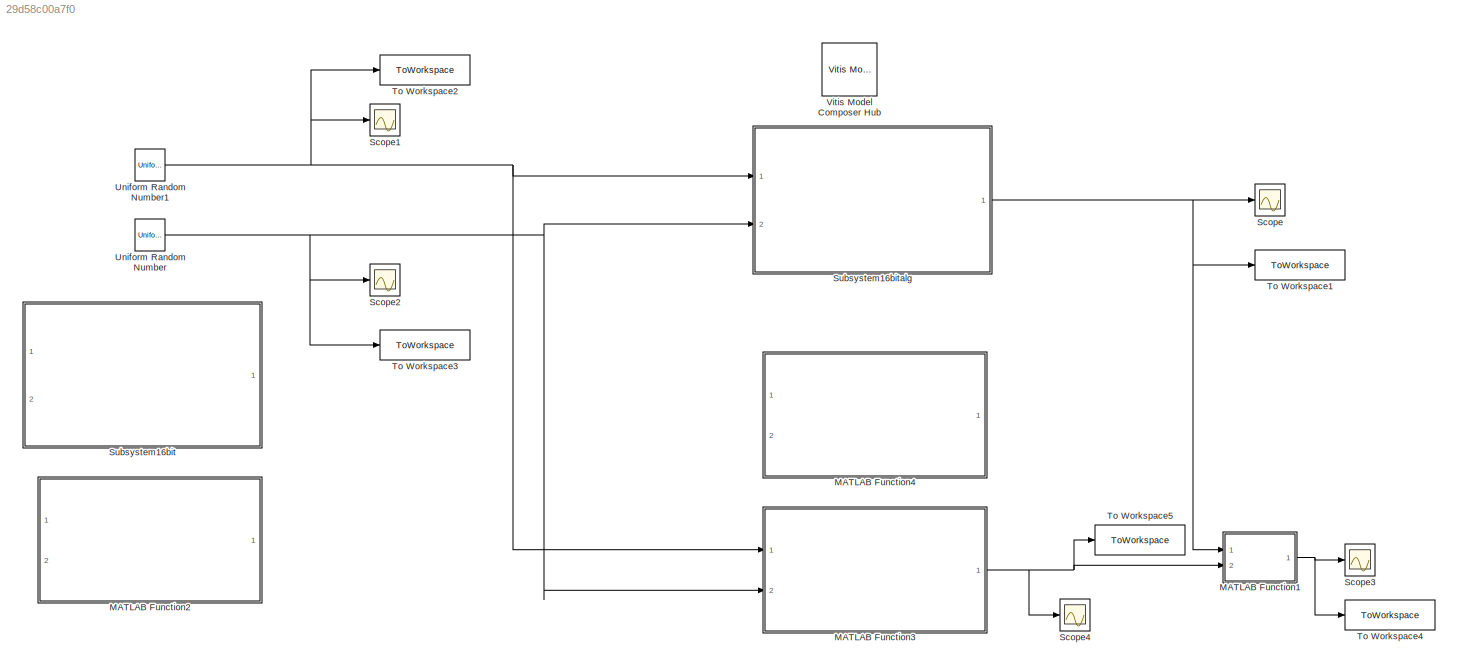
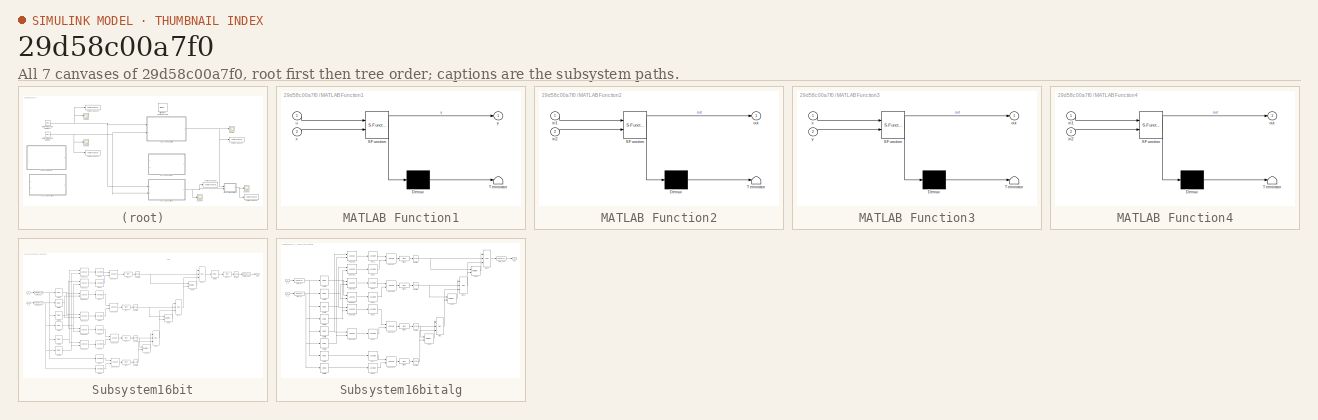
[diagram: thumbnail index - all 7 canvases of the model, root first then tree order]
MODEL slx_29d58c00a7f0
KIND model
CONFIG AbsTol = auto
CONFIG EnableMultiTasking = off
CONFIG FixedStep = auto
CONFIG MaxStep = auto
CONFIG MinStep = auto
CONFIG RelTol = 1e-3
CONFIG SampleTimeConstraint = Unconstrained
CONFIG SolverName = VariableStepAuto
CONFIG StartTime = 0.0
CONFIG StopTime = 99
BLOCK [SubSystem] MATLAB Function1
  ErrorFcn = Stateflow.Translate.translate
  PermitHierarchicalResolution = ExplicitOnly
  Ports = [2, 1]
  RequestExecContextInheritance = off
  SFBlockType = MATLAB Function
  TreatAsAtomicUnit = on
BLOCK [Demux] MATLAB Function1/ Demux 
  Outputs = 1
  Ports = [1, 1]
BLOCK [S-Function] MATLAB Function1/ SFunction 
  EnableBusSupport = on
  FunctionName = sf_sfun
  PortCounts = [2 2]
  Ports = [2, 2]
  SFcnIsStateOwnerBlock = off
  SFunctionDeploymentMode = off
  Tag = Stateflow S-Function 1
BLOCK [Terminator] MATLAB Function1/ Terminator 
BLOCK [Inport] MATLAB Function1/u
BLOCK [Inport] MATLAB Function1/x
  Port = 2
BLOCK [Outport] MATLAB Function1/y
BLOCK [SubSystem] MATLAB Function2
  Commented = on
  ErrorFcn = Stateflow.Translate.translate
  PermitHierarchicalResolution = ExplicitOnly
  Ports = [2, 1]
  RequestExecContextInheritance = off
  SFBlockType = MATLAB Function
  TreatAsAtomicUnit = on
BLOCK [Demux] MATLAB Function2/ Demux 
  Outputs = 1
  Ports = [1, 1]
BLOCK [S-Function] MATLAB Function2/ SFunction 
  EnableBusSupport = on
  FunctionName = sf_sfun
  PortCounts = [2 2]
  Ports = [2, 2]
  SFcnIsStateOwnerBlock = off
  SFunctionDeploymentMode = off
  Tag = Stateflow S-Function 2
BLOCK [Terminator] MATLAB Function2/ Terminator 
BLOCK [Inport] MATLAB Function2/in1
BLOCK [Inport] MATLAB Function2/in2
  Port = 2
BLOCK [Outport] MATLAB Function2/out
BLOCK [SubSystem] MATLAB Function3
  ErrorFcn = Stateflow.Translate.translate
  PermitHierarchicalResolution = ExplicitOnly
  Ports = [2, 1]
  RequestExecContextInheritance = off
  SFBlockType = MATLAB Function
  TreatAsAtomicUnit = on
BLOCK [Demux] MATLAB Function3/ Demux 
  Outputs = 1
  Ports = [1, 1]
BLOCK [S-Function] MATLAB Function3/ SFunction 
  EnableBusSupport = on
  FunctionName = sf_sfun
  PortCounts = [2 2]
  Ports = [2, 2]
  SFcnIsStateOwnerBlock = off
  SFunctionDeploymentMode = off
  Tag = Stateflow S-Function 4
BLOCK [Terminator] MATLAB Function3/ Terminator 
BLOCK [Outport] MATLAB Function3/out
BLOCK [Inport] MATLAB Function3/x
BLOCK [Inport] MATLAB Function3/y
  Port = 2
BLOCK [SubSystem] MATLAB Function4
  Commented = on
  ErrorFcn = Stateflow.Translate.translate
  PermitHierarchicalResolution = ExplicitOnly
  Ports = [2, 1]
  RequestExecContextInheritance = off
  SFBlockType = MATLAB Function
  TreatAsAtomicUnit = on
BLOCK [Demux] MATLAB Function4/ Demux 
  Outputs = 1
  Ports = [1, 1]
BLOCK [S-Function] MATLAB Function4/ SFunction 
  EnableBusSupport = on
  FunctionName = sf_sfun
  PortCounts = [2 2]
  Ports = [2, 2]
  SFcnIsStateOwnerBlock = off
  SFunctionDeploymentMode = off
  Tag = Stateflow S-Function 10
BLOCK [Terminator] MATLAB Function4/ Terminator 
BLOCK [Inport] MATLAB Function4/in1
BLOCK [Inport] MATLAB Function4/in2
  Port = 2
BLOCK [Outport] MATLAB Function4/out
BLOCK [Scope] Scope
  Floating = off
  NumInputPorts = 1
  Ports = [1]
  ScopeSpecificationString = Simulink.scopes.TimeScopeBlockCfg('CurrentConfiguration', extmgr.ConfigurationSet(extmgr.Configuration('Core','General UI',true),extmgr.Configuration('Core','Source UI',true),extmgr.Configuration('Sources','WiredSimulink',true,'DataLoggingVariableName','ScopeData1'),extmgr.Configuration('Visuals','Time Domain',true,'SerializedDisplays',{struct('MinYLimReal','-0.15463','MaxYLimReal','1.39164','YLab...<+1467ch>
BLOCK [Scope] Scope1
  Floating = off
  NumInputPorts = 1
  Ports = [1]
  ScopeSpecificationString = Simulink.scopes.TimeScopeBlockCfg('CurrentConfiguration', extmgr.ConfigurationSet(extmgr.Configuration('Core','General UI',true),extmgr.Configuration('Core','Source UI',true),extmgr.Configuration('Sources','WiredSimulink',true,'DataLoggingVariableName','ScopeData2'),extmgr.Configuration('Visuals','Time Domain',true,'SerializedDisplays',{struct('MinYLimReal','-1.24022','MaxYLimReal','1.19726','YLab...<+1453ch>
BLOCK [Scope] Scope2
  Floating = off
  NumInputPorts = 1
  Ports = [1]
  ScopeSpecificationString = Simulink.scopes.TimeScopeBlockCfg('CurrentConfiguration', extmgr.ConfigurationSet(extmgr.Configuration('Core','General UI',true),extmgr.Configuration('Core','Source UI',true),extmgr.Configuration('Sources','WiredSimulink',true,'DataLoggingVariableName','ScopeData3'),extmgr.Configuration('Visuals','Time Domain',true,'SerializedDisplays',{struct('MinYLimReal','-0.11627','MaxYLimReal','1.12343','YLab...<+1450ch>
BLOCK [Scope] Scope3
  Floating = off
  NumInputPorts = 1
  Ports = [1]
  ScopeSpecificationString = Simulink.scopes.TimeScopeBlockCfg('CurrentConfiguration', extmgr.ConfigurationSet(extmgr.Configuration('Core','General UI',true),extmgr.Configuration('Core','Source UI',true),extmgr.Configuration('Sources','WiredSimulink',true,'DataLoggingVariableName','ScopeData4'),extmgr.Configuration('Visuals','Time Domain',true,'SerializedDisplays',{struct('MinYLimReal','-0.00007','MaxYLimReal','0.00059','YLab...<+1448ch>
BLOCK [Scope] Scope4
  Floating = off
  NumInputPorts = 1
  Ports = [1]
  ScopeSpecificationString = Simulink.scopes.TimeScopeBlockCfg('CurrentConfiguration', extmgr.ConfigurationSet(extmgr.Configuration('Core','General UI',true),extmgr.Configuration('Core','Source UI',true),extmgr.Configuration('Sources','WiredSimulink',true),extmgr.Configuration('Visuals','Time Domain',true,'SerializedDisplays',{struct('MinYLimReal','-0.15485','MaxYLimReal','1.39364','YLabelReal','','MinYLimMag','0.00000','MaxY...<+1409ch>
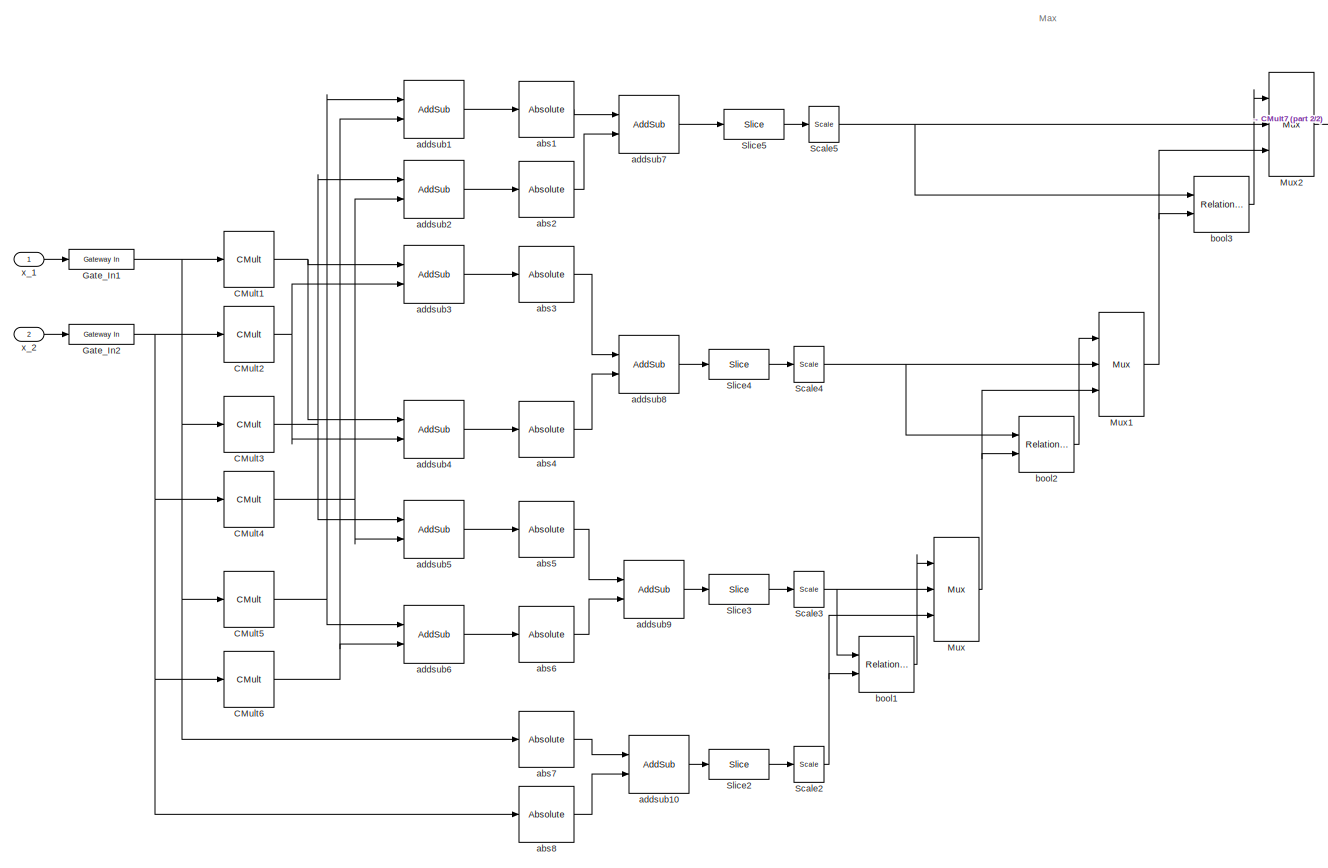
[diagram: Subsystem16bit - part 1/2, most of the canvas]
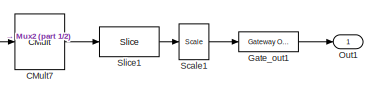
[diagram: Subsystem16bit - part 2/2, top right region]
BLOCK [SubSystem] Subsystem16bit
  Commented = on
  Ports = [2, 1]
  RequestExecContextInheritance = off
BLOCK [Reference] Subsystem16bit/CMult1  REF=hdlBasic/CMult
  Ports = [1, 1]
  SourceBlock = hdlBasic/CMult
  SourceType = Constant Multiplier Block
BLOCK [Reference] Subsystem16bit/CMult2  REF=hdlBasic/CMult
  Ports = [1, 1]
  SourceBlock = hdlBasic/CMult
  SourceType = Constant Multiplier Block
BLOCK [Reference] Subsystem16bit/CMult3  REF=hdlBasic/CMult
  Ports = [1, 1]
  SourceBlock = hdlBasic/CMult
  SourceType = Constant Multiplier Block
BLOCK [Reference] Subsystem16bit/CMult4  REF=hdlBasic/CMult
  Ports = [1, 1]
  SourceBlock = hdlBasic/CMult
  SourceType = Constant Multiplier Block
BLOCK [Reference] Subsystem16bit/CMult5  REF=hdlBasic/CMult
  Ports = [1, 1]
  SourceBlock = hdlBasic/CMult
  SourceType = Constant Multiplier Block
BLOCK [Reference] Subsystem16bit/CMult6  REF=hdlBasic/CMult
  Ports = [1, 1]
  SourceBlock = hdlBasic/CMult
  SourceType = Constant Multiplier Block
BLOCK [Reference] Subsystem16bit/CMult7  REF=hdlBasic/CMult
  Ports = [1, 1]
  SourceBlock = hdlBasic/CMult
  SourceType = Constant Multiplier Block
BLOCK [Reference] Subsystem16bit/Gate_In1  REF=hdlBasic/Gateway In
  Ports = [1, 1]
  SourceBlock = hdlBasic/Gateway In
  SourceType = Gateway In Block
BLOCK [Reference] Subsystem16bit/Gate_In2  REF=hdlBasic/Gateway In
  Ports = [1, 1]
  SourceBlock = hdlBasic/Gateway In
  SourceType = Gateway In Block
BLOCK [Reference] Subsystem16bit/Gate_out1  REF=hdlBasic/Gateway Out
  Ports = [1, 1]
  SourceBlock = hdlBasic/Gateway Out
  SourceType = Gateway Out Block
BLOCK [Reference] Subsystem16bit/Mux  REF=hdlBasic/Mux
  Ports = [3, 1]
  SourceBlock = hdlBasic/Mux
  SourceType = Bus Multiplexer Block
BLOCK [Reference] Subsystem16bit/Mux1  REF=hdlBasic/Mux
  Ports = [3, 1]
  SourceBlock = hdlBasic/Mux
  SourceType = Bus Multiplexer Block
BLOCK [Reference] Subsystem16bit/Mux2  REF=hdlBasic/Mux
  Ports = [3, 1]
  SourceBlock = hdlBasic/Mux
  SourceType = Bus Multiplexer Block
BLOCK [Outport] Subsystem16bit/Out1
BLOCK [Reference] Subsystem16bit/Scale1  REF=hdlBasic/Scale
  Ports = [1, 1]
  SourceBlock = hdlBasic/Scale
  SourceType = Input Scaler Block
BLOCK [Reference] Subsystem16bit/Scale2  REF=hdlBasic/Scale
  Ports = [1, 1]
  SourceBlock = hdlBasic/Scale
  SourceType = Input Scaler Block
BLOCK [Reference] Subsystem16bit/Scale3  REF=hdlBasic/Scale
  Ports = [1, 1]
  SourceBlock = hdlBasic/Scale
  SourceType = Input Scaler Block
BLOCK [Reference] Subsystem16bit/Scale4  REF=hdlBasic/Scale
  Ports = [1, 1]
  SourceBlock = hdlBasic/Scale
  SourceType = Input Scaler Block
BLOCK [Reference] Subsystem16bit/Scale5  REF=hdlBasic/Scale
  Ports = [1, 1]
  SourceBlock = hdlBasic/Scale
  SourceType = Input Scaler Block
BLOCK [Reference] Subsystem16bit/Slice1  REF=hdlBasic/Slice
  Ports = [1, 1]
  SourceBlock = hdlBasic/Slice
  SourceType = Bit Slice Extractor Block
BLOCK [Reference] Subsystem16bit/Slice2  REF=hdlBasic/Slice
  Ports = [1, 1]
  SourceBlock = hdlBasic/Slice
  SourceType = Bit Slice Extractor Block
BLOCK [Reference] Subsystem16bit/Slice3  REF=hdlBasic/Slice
  Ports = [1, 1]
  SourceBlock = hdlBasic/Slice
  SourceType = Bit Slice Extractor Block
BLOCK [Reference] Subsystem16bit/Slice4  REF=hdlBasic/Slice
  Ports = [1, 1]
  SourceBlock = hdlBasic/Slice
  SourceType = Bit Slice Extractor Block
BLOCK [Reference] Subsystem16bit/Slice5  REF=hdlBasic/Slice
  Ports = [1, 1]
  SourceBlock = hdlBasic/Slice
  SourceType = Bit Slice Extractor Block
BLOCK [Reference] Subsystem16bit/abs1  REF=hdlBasic/Absolute
  Ports = [1, 1]
  SourceBlock = hdlBasic/Absolute
  SourceType = Absolute Block
BLOCK [Reference] Subsystem16bit/abs2  REF=hdlBasic/Absolute
  Ports = [1, 1]
  SourceBlock = hdlBasic/Absolute
  SourceType = Absolute Block
BLOCK [Reference] Subsystem16bit/abs3  REF=hdlBasic/Absolute
  Ports = [1, 1]
  SourceBlock = hdlBasic/Absolute
  SourceType = Absolute Block
BLOCK [Reference] Subsystem16bit/abs4  REF=hdlBasic/Absolute
  Ports = [1, 1]
  SourceBlock = hdlBasic/Absolute
  SourceType = Absolute Block
BLOCK [Reference] Subsystem16bit/abs5  REF=hdlBasic/Absolute
  Ports = [1, 1]
  SourceBlock = hdlBasic/Absolute
  SourceType = Absolute Block
BLOCK [Reference] Subsystem16bit/abs6  REF=hdlBasic/Absolute
  Ports = [1, 1]
  SourceBlock = hdlBasic/Absolute
  SourceType = Absolute Block
BLOCK [Reference] Subsystem16bit/abs7  REF=hdlBasic/Absolute
  Ports = [1, 1]
  SourceBlock = hdlBasic/Absolute
  SourceType = Absolute Block
BLOCK [Reference] Subsystem16bit/abs8  REF=hdlBasic/Absolute
  Ports = [1, 1]
  SourceBlock = hdlBasic/Absolute
  SourceType = Absolute Block
BLOCK [Reference] Subsystem16bit/addsub1  REF=hdlBasic/AddSub
  Ports = [2, 1]
  SourceBlock = hdlBasic/AddSub
  SourceType = Adder/Subtracter Block
BLOCK [Reference] Subsystem16bit/addsub10  REF=hdlBasic/AddSub
  Ports = [2, 1]
  SourceBlock = hdlBasic/AddSub
  SourceType = Adder/Subtracter Block
BLOCK [Reference] Subsystem16bit/addsub2  REF=hdlBasic/AddSub
  Ports = [2, 1]
  SourceBlock = hdlBasic/AddSub
  SourceType = Adder/Subtracter Block
BLOCK [Reference] Subsystem16bit/addsub3  REF=hdlBasic/AddSub
  Ports = [2, 1]
  SourceBlock = hdlBasic/AddSub
  SourceType = Adder/Subtracter Block
BLOCK [Reference] Subsystem16bit/addsub4  REF=hdlBasic/AddSub
  Ports = [2, 1]
  SourceBlock = hdlBasic/AddSub
  SourceType = Adder/Subtracter Block
BLOCK [Reference] Subsystem16bit/addsub5  REF=hdlBasic/AddSub
  Ports = [2, 1]
  SourceBlock = hdlBasic/AddSub
  SourceType = Adder/Subtracter Block
BLOCK [Reference] Subsystem16bit/addsub6  REF=hdlBasic/AddSub
  Ports = [2, 1]
  SourceBlock = hdlBasic/AddSub
  SourceType = Adder/Subtracter Block
BLOCK [Reference] Subsystem16bit/addsub7  REF=hdlBasic/AddSub
  Ports = [2, 1]
  SourceBlock = hdlBasic/AddSub
  SourceType = Adder/Subtracter Block
BLOCK [Reference] Subsystem16bit/addsub8  REF=hdlBasic/AddSub
  Ports = [2, 1]
  SourceBlock = hdlBasic/AddSub
  SourceType = Adder/Subtracter Block
BLOCK [Reference] Subsystem16bit/addsub9  REF=hdlBasic/AddSub
  Ports = [2, 1]
  SourceBlock = hdlBasic/AddSub
  SourceType = Adder/Subtracter Block
BLOCK [Reference] Subsystem16bit/bool1  REF=hdlBasic/Relational
  Ports = [2, 1]
  SourceBlock = hdlBasic/Relational
  SourceType = Arithmetic Relational Operator Block
BLOCK [Reference] Subsystem16bit/bool2  REF=hdlBasic/Relational
  Ports = [2, 1]
  SourceBlock = hdlBasic/Relational
  SourceType = Arithmetic Relational Operator Block
BLOCK [Reference] Subsystem16bit/bool3  REF=hdlBasic/Relational
  Ports = [2, 1]
  SourceBlock = hdlBasic/Relational
  SourceType = Arithmetic Relational Operator Block
BLOCK [Inport] Subsystem16bit/x_1
BLOCK [Inport] Subsystem16bit/x_2
  Port = 2
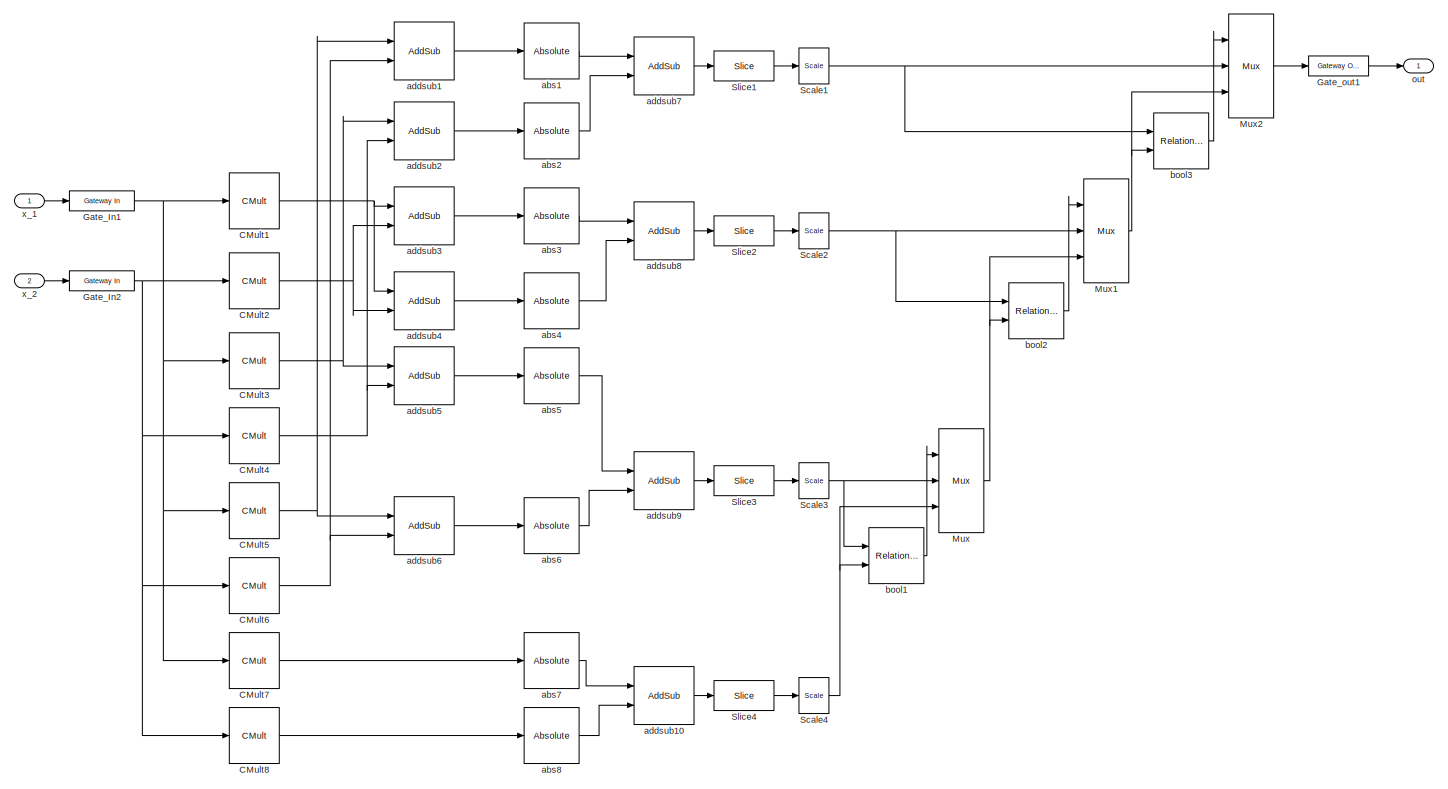
[diagram: Subsystem16bitalg - part 1/1, most of the canvas]
BLOCK [SubSystem] Subsystem16bitalg
  Ports = [2, 1]
  RequestExecContextInheritance = off
BLOCK [Reference] Subsystem16bitalg/CMult1  REF=hdlBasic/CMult
  Ports = [1, 1]
  SourceBlock = hdlBasic/CMult
  SourceType = Constant Multiplier Block
BLOCK [Reference] Subsystem16bitalg/CMult2  REF=hdlBasic/CMult
  Ports = [1, 1]
  SourceBlock = hdlBasic/CMult
  SourceType = Constant Multiplier Block
BLOCK [Reference] Subsystem16bitalg/CMult3  REF=hdlBasic/CMult
  Ports = [1, 1]
  SourceBlock = hdlBasic/CMult
  SourceType = Constant Multiplier Block
BLOCK [Reference] Subsystem16bitalg/CMult4  REF=hdlBasic/CMult
  Ports = [1, 1]
  SourceBlock = hdlBasic/CMult
  SourceType = Constant Multiplier Block
BLOCK [Reference] Subsystem16bitalg/CMult5  REF=hdlBasic/CMult
  Ports = [1, 1]
  SourceBlock = hdlBasic/CMult
  SourceType = Constant Multiplier Block
BLOCK [Reference] Subsystem16bitalg/CMult6  REF=hdlBasic/CMult
  Ports = [1, 1]
  SourceBlock = hdlBasic/CMult
  SourceType = Constant Multiplier Block
BLOCK [Reference] Subsystem16bitalg/CMult7  REF=hdlBasic/CMult
  Ports = [1, 1]
  SourceBlock = hdlBasic/CMult
  SourceType = Constant Multiplier Block
BLOCK [Reference] Subsystem16bitalg/CMult8  REF=hdlBasic/CMult
  Ports = [1, 1]
  SourceBlock = hdlBasic/CMult
  SourceType = Constant Multiplier Block
BLOCK [Reference] Subsystem16bitalg/Gate_In1  REF=hdlBasic/Gateway In
  Ports = [1, 1]
  SourceBlock = hdlBasic/Gateway In
  SourceType = Gateway In Block
BLOCK [Reference] Subsystem16bitalg/Gate_In2  REF=hdlBasic/Gateway In
  Ports = [1, 1]
  SourceBlock = hdlBasic/Gateway In
  SourceType = Gateway In Block
BLOCK [Reference] Subsystem16bitalg/Gate_out1  REF=hdlBasic/Gateway Out
  Ports = [1, 1]
  SourceBlock = hdlBasic/Gateway Out
  SourceType = Gateway Out Block
BLOCK [Reference] Subsystem16bitalg/Mux  REF=hdlBasic/Mux
  Ports = [3, 1]
  SourceBlock = hdlBasic/Mux
  SourceType = Bus Multiplexer Block
BLOCK [Reference] Subsystem16bitalg/Mux1  REF=hdlBasic/Mux
  Ports = [3, 1]
  SourceBlock = hdlBasic/Mux
  SourceType = Bus Multiplexer Block
BLOCK [Reference] Subsystem16bitalg/Mux2  REF=hdlBasic/Mux
  Ports = [3, 1]
  SourceBlock = hdlBasic/Mux
  SourceType = Bus Multiplexer Block
BLOCK [Reference] Subsystem16bitalg/Scale1  REF=hdlBasic/Scale
  Ports = [1, 1]
  SourceBlock = hdlBasic/Scale
  SourceType = Input Scaler Block
BLOCK [Reference] Subsystem16bitalg/Scale2  REF=hdlBasic/Scale
  Ports = [1, 1]
  SourceBlock = hdlBasic/Scale
  SourceType = Input Scaler Block
BLOCK [Reference] Subsystem16bitalg/Scale3  REF=hdlBasic/Scale
  Ports = [1, 1]
  SourceBlock = hdlBasic/Scale
  SourceType = Input Scaler Block
BLOCK [Reference] Subsystem16bitalg/Scale4  REF=hdlBasic/Scale
  Ports = [1, 1]
  SourceBlock = hdlBasic/Scale
  SourceType = Input Scaler Block
BLOCK [Reference] Subsystem16bitalg/Slice1  REF=hdlBasic/Slice
  Ports = [1, 1]
  SourceBlock = hdlBasic/Slice
  SourceType = Bit Slice Extractor Block
BLOCK [Reference] Subsystem16bitalg/Slice2  REF=hdlBasic/Slice
  Ports = [1, 1]
  SourceBlock = hdlBasic/Slice
  SourceType = Bit Slice Extractor Block
BLOCK [Reference] Subsystem16bitalg/Slice3  REF=hdlBasic/Slice
  Ports = [1, 1]
  SourceBlock = hdlBasic/Slice
  SourceType = Bit Slice Extractor Block
BLOCK [Reference] Subsystem16bitalg/Slice4  REF=hdlBasic/Slice
  Ports = [1, 1]
  SourceBlock = hdlBasic/Slice
  SourceType = Bit Slice Extractor Block
BLOCK [Reference] Subsystem16bitalg/abs1  REF=hdlBasic/Absolute
  Ports = [1, 1]
  SourceBlock = hdlBasic/Absolute
  SourceType = Absolute Block
BLOCK [Reference] Subsystem16bitalg/abs2  REF=hdlBasic/Absolute
  Ports = [1, 1]
  SourceBlock = hdlBasic/Absolute
  SourceType = Absolute Block
BLOCK [Reference] Subsystem16bitalg/abs3  REF=hdlBasic/Absolute
  Ports = [1, 1]
  SourceBlock = hdlBasic/Absolute
  SourceType = Absolute Block
BLOCK [Reference] Subsystem16bitalg/abs4  REF=hdlBasic/Absolute
  Ports = [1, 1]
  SourceBlock = hdlBasic/Absolute
  SourceType = Absolute Block
BLOCK [Reference] Subsystem16bitalg/abs5  REF=hdlBasic/Absolute
  Ports = [1, 1]
  SourceBlock = hdlBasic/Absolute
  SourceType = Absolute Block
BLOCK [Reference] Subsystem16bitalg/abs6  REF=hdlBasic/Absolute
  Ports = [1, 1]
  SourceBlock = hdlBasic/Absolute
  SourceType = Absolute Block
BLOCK [Reference] Subsystem16bitalg/abs7  REF=hdlBasic/Absolute
  Ports = [1, 1]
  SourceBlock = hdlBasic/Absolute
  SourceType = Absolute Block
BLOCK [Reference] Subsystem16bitalg/abs8  REF=hdlBasic/Absolute
  Ports = [1, 1]
  SourceBlock = hdlBasic/Absolute
  SourceType = Absolute Block
BLOCK [Reference] Subsystem16bitalg/addsub1  REF=hdlBasic/AddSub
  Ports = [2, 1]
  SourceBlock = hdlBasic/AddSub
  SourceType = Adder/Subtracter Block
BLOCK [Reference] Subsystem16bitalg/addsub10  REF=hdlBasic/AddSub
  Ports = [2, 1]
  SourceBlock = hdlBasic/AddSub
  SourceType = Adder/Subtracter Block
BLOCK [Reference] Subsystem16bitalg/addsub2  REF=hdlBasic/AddSub
  Ports = [2, 1]
  SourceBlock = hdlBasic/AddSub
  SourceType = Adder/Subtracter Block
BLOCK [Reference] Subsystem16bitalg/addsub3  REF=hdlBasic/AddSub
  Ports = [2, 1]
  SourceBlock = hdlBasic/AddSub
  SourceType = Adder/Subtracter Block
BLOCK [Reference] Subsystem16bitalg/addsub4  REF=hdlBasic/AddSub
  Ports = [2, 1]
  SourceBlock = hdlBasic/AddSub
  SourceType = Adder/Subtracter Block
BLOCK [Reference] Subsystem16bitalg/addsub5  REF=hdlBasic/AddSub
  Ports = [2, 1]
  SourceBlock = hdlBasic/AddSub
  SourceType = Adder/Subtracter Block
BLOCK [Reference] Subsystem16bitalg/addsub6  REF=hdlBasic/AddSub
  Ports = [2, 1]
  SourceBlock = hdlBasic/AddSub
  SourceType = Adder/Subtracter Block
BLOCK [Reference] Subsystem16bitalg/addsub7  REF=hdlBasic/AddSub
  Ports = [2, 1]
  SourceBlock = hdlBasic/AddSub
  SourceType = Adder/Subtracter Block
BLOCK [Reference] Subsystem16bitalg/addsub8  REF=hdlBasic/AddSub
  Ports = [2, 1]
  SourceBlock = hdlBasic/AddSub
  SourceType = Adder/Subtracter Block
BLOCK [Reference] Subsystem16bitalg/addsub9  REF=hdlBasic/AddSub
  Ports = [2, 1]
  SourceBlock = hdlBasic/AddSub
  SourceType = Adder/Subtracter Block
BLOCK [Reference] Subsystem16bitalg/bool1  REF=hdlBasic/Relational
  Ports = [2, 1]
  SourceBlock = hdlBasic/Relational
  SourceType = Arithmetic Relational Operator Block
BLOCK [Reference] Subsystem16bitalg/bool2  REF=hdlBasic/Relational
  Ports = [2, 1]
  SourceBlock = hdlBasic/Relational
  SourceType = Arithmetic Relational Operator Block
BLOCK [Reference] Subsystem16bitalg/bool3  REF=hdlBasic/Relational
  Ports = [2, 1]
  SourceBlock = hdlBasic/Relational
  SourceType = Arithmetic Relational Operator Block
BLOCK [Outport] Subsystem16bitalg/out
BLOCK [Inport] Subsystem16bitalg/x_1
BLOCK [Inport] Subsystem16bitalg/x_2
  Port = 2
BLOCK [ToWorkspace] To Workspace1
  FixptAsFi = on
  MaxDataPoints = inf
  Ports = [1]
  SampleTime = -1
  SaveFormat = Structure With Time
  VariableName = outPro
BLOCK [ToWorkspace] To Workspace2
  FixptAsFi = on
  MaxDataPoints = inf
  Ports = [1]
  SampleTime = -1
  SaveFormat = Structure With Time
  VariableName = IN1
BLOCK [ToWorkspace] To Workspace3
  FixptAsFi = on
  MaxDataPoints = inf
  Ports = [1]
  SampleTime = -1
  SaveFormat = Structure With Time
  VariableName = IN2
BLOCK [ToWorkspace] To Workspace4
  FixptAsFi = on
  MaxDataPoints = inf
  Ports = [1]
  SampleTime = -1
  SaveFormat = Structure With Time
  VariableName = mse
BLOCK [ToWorkspace] To Workspace5
  FixptAsFi = on
  MaxDataPoints = inf
  Ports = [1]
  SampleTime = -1
  SaveFormat = Structure With Time
  VariableName = outGOLD
BLOCK [UniformRandomNumber] Uniform Random Number
  SampleTime = 1
BLOCK [UniformRandomNumber] Uniform Random Number1
  SampleTime = 1
  Seed = 1
BLOCK [Reference] Vitis Model Composer Hub  REF=vmcUtilities/Vitis Model Composer Hub
  Ports = []
  SourceBlock = vmcUtilities/Vitis Model Composer Hub
  SourceType = Implementation
  Tag = genX
  UserDataPersistent = on
ANNOTATION Subsystem16bit: Max
NET MATLAB Function1:1 -> Scope3:1, To Workspace4:1
NET MATLAB Function3:1 -> MATLAB Function1:2, Scope4:1, To Workspace5:1
NET Subsystem16bit/CMult1:1 -> Subsystem16bit/addsub3:1, Subsystem16bit/addsub4:1
NET Subsystem16bit/CMult2:1 -> Subsystem16bit/addsub3:2, Subsystem16bit/addsub4:2
NET Subsystem16bit/CMult3:1 -> Subsystem16bit/addsub2:1, Subsystem16bit/addsub5:1
NET Subsystem16bit/CMult4:1 -> Subsystem16bit/addsub2:2, Subsystem16bit/addsub5:2
NET Subsystem16bit/CMult5:1 -> Subsystem16bit/addsub1:1, Subsystem16bit/addsub6:1
NET Subsystem16bit/CMult6:1 -> Subsystem16bit/addsub1:2, Subsystem16bit/addsub6:2
LINE Subsystem16bit/CMult7:1 -> Subsystem16bit/Slice1:1
NET Subsystem16bit/Gate_In1:1 -> Subsystem16bit/CMult1:1, Subsystem16bit/CMult3:1, Subsystem16bit/CMult5:1, Subsystem16bit/abs7:1
NET Subsystem16bit/Gate_In2:1 -> Subsystem16bit/CMult2:1, Subsystem16bit/CMult4:1, Subsystem16bit/CMult6:1, Subsystem16bit/abs8:1
LINE Subsystem16bit/Gate_out1:1 -> Subsystem16bit/Out1:1
NET Subsystem16bit/Mux1:1 -> Subsystem16bit/Mux2:3, Subsystem16bit/bool3:2
LINE Subsystem16bit/Mux2:1 -> Subsystem16bit/CMult7:1
NET Subsystem16bit/Mux:1 -> Subsystem16bit/Mux1:3, Subsystem16bit/bool2:2
LINE Subsystem16bit/Scale1:1 -> Subsystem16bit/Gate_out1:1
NET Subsystem16bit/Scale2:1 -> Subsystem16bit/Mux:3, Subsystem16bit/bool1:2
NET Subsystem16bit/Scale3:1 -> Subsystem16bit/Mux:2, Subsystem16bit/bool1:1
NET Subsystem16bit/Scale4:1 -> Subsystem16bit/Mux1:2, Subsystem16bit/bool2:1
NET Subsystem16bit/Scale5:1 -> Subsystem16bit/Mux2:2, Subsystem16bit/bool3:1
LINE Subsystem16bit/Slice1:1 -> Subsystem16bit/Scale1:1
LINE Subsystem16bit/Slice2:1 -> Subsystem16bit/Scale2:1
LINE Subsystem16bit/Slice3:1 -> Subsystem16bit/Scale3:1
LINE Subsystem16bit/Slice4:1 -> Subsystem16bit/Scale4:1
LINE Subsystem16bit/Slice5:1 -> Subsystem16bit/Scale5:1
LINE Subsystem16bit/abs1:1 -> Subsystem16bit/addsub7:1
LINE Subsystem16bit/abs2:1 -> Subsystem16bit/addsub7:2
LINE Subsystem16bit/abs3:1 -> Subsystem16bit/addsub8:1
LINE Subsystem16bit/abs4:1 -> Subsystem16bit/addsub8:2
LINE Subsystem16bit/abs5:1 -> Subsystem16bit/addsub9:1
LINE Subsystem16bit/abs6:1 -> Subsystem16bit/addsub9:2
LINE Subsystem16bit/abs7:1 -> Subsystem16bit/addsub10:1
LINE Subsystem16bit/abs8:1 -> Subsystem16bit/addsub10:2
LINE Subsystem16bit/addsub10:1 -> Subsystem16bit/Slice2:1
LINE Subsystem16bit/addsub1:1 -> Subsystem16bit/abs1:1
LINE Subsystem16bit/addsub2:1 -> Subsystem16bit/abs2:1
LINE Subsystem16bit/addsub3:1 -> Subsystem16bit/abs3:1
LINE Subsystem16bit/addsub4:1 -> Subsystem16bit/abs4:1
LINE Subsystem16bit/addsub5:1 -> Subsystem16bit/abs5:1
LINE Subsystem16bit/addsub6:1 -> Subsystem16bit/abs6:1
LINE Subsystem16bit/addsub7:1 -> Subsystem16bit/Slice5:1
LINE Subsystem16bit/addsub8:1 -> Subsystem16bit/Slice4:1
LINE Subsystem16bit/addsub9:1 -> Subsystem16bit/Slice3:1
LINE Subsystem16bit/bool1:1 -> Subsystem16bit/Mux:1
LINE Subsystem16bit/bool2:1 -> Subsystem16bit/Mux1:1
LINE Subsystem16bit/bool3:1 -> Subsystem16bit/Mux2:1
LINE Subsystem16bit/x_1:1 -> Subsystem16bit/Gate_In1:1
LINE Subsystem16bit/x_2:1 -> Subsystem16bit/Gate_In2:1
NET Subsystem16bitalg/CMult1:1 -> Subsystem16bitalg/addsub3:1, Subsystem16bitalg/addsub4:1
NET Subsystem16bitalg/CMult2:1 -> Subsystem16bitalg/addsub3:2, Subsystem16bitalg/addsub4:2
NET Subsystem16bitalg/CMult3:1 -> Subsystem16bitalg/addsub2:1, Subsystem16bitalg/addsub5:1
NET Subsystem16bitalg/CMult4:1 -> Subsystem16bitalg/addsub2:2, Subsystem16bitalg/addsub5:2
NET Subsystem16bitalg/CMult5:1 -> Subsystem16bitalg/addsub1:1, Subsystem16bitalg/addsub6:1
NET Subsystem16bitalg/CMult6:1 -> Subsystem16bitalg/addsub1:2, Subsystem16bitalg/addsub6:2
LINE Subsystem16bitalg/CMult7:1 -> Subsystem16bitalg/abs7:1
LINE Subsystem16bitalg/CMult8:1 -> Subsystem16bitalg/abs8:1
NET Subsystem16bitalg/Gate_In1:1 -> Subsystem16bitalg/CMult1:1, Subsystem16bitalg/CMult3:1, Subsystem16bitalg/CMult5:1, Subsystem16bitalg/CMult7:1
NET Subsystem16bitalg/Gate_In2:1 -> Subsystem16bitalg/CMult2:1, Subsystem16bitalg/CMult4:1, Subsystem16bitalg/CMult6:1, Subsystem16bitalg/CMult8:1
LINE Subsystem16bitalg/Gate_out1:1 -> Subsystem16bitalg/out:1
NET Subsystem16bitalg/Mux1:1 -> Subsystem16bitalg/Mux2:3, Subsystem16bitalg/bool3:2
LINE Subsystem16bitalg/Mux2:1 -> Subsystem16bitalg/Gate_out1:1
NET Subsystem16bitalg/Mux:1 -> Subsystem16bitalg/Mux1:3, Subsystem16bitalg/bool2:2
NET Subsystem16bitalg/Scale1:1 -> Subsystem16bitalg/Mux2:2, Subsystem16bitalg/bool3:1
NET Subsystem16bitalg/Scale2:1 -> Subsystem16bitalg/Mux1:2, Subsystem16bitalg/bool2:1
NET Subsystem16bitalg/Scale3:1 -> Subsystem16bitalg/Mux:2, Subsystem16bitalg/bool1:1
NET Subsystem16bitalg/Scale4:1 -> Subsystem16bitalg/Mux:3, Subsystem16bitalg/bool1:2
LINE Subsystem16bitalg/Slice1:1 -> Subsystem16bitalg/Scale1:1
LINE Subsystem16bitalg/Slice2:1 -> Subsystem16bitalg/Scale2:1
LINE Subsystem16bitalg/Slice3:1 -> Subsystem16bitalg/Scale3:1
LINE Subsystem16bitalg/Slice4:1 -> Subsystem16bitalg/Scale4:1
LINE Subsystem16bitalg/abs1:1 -> Subsystem16bitalg/addsub7:1
LINE Subsystem16bitalg/abs2:1 -> Subsystem16bitalg/addsub7:2
LINE Subsystem16bitalg/abs3:1 -> Subsystem16bitalg/addsub8:1
LINE Subsystem16bitalg/abs4:1 -> Subsystem16bitalg/addsub8:2
LINE Subsystem16bitalg/abs5:1 -> Subsystem16bitalg/addsub9:1
LINE Subsystem16bitalg/abs6:1 -> Subsystem16bitalg/addsub9:2
LINE Subsystem16bitalg/abs7:1 -> Subsystem16bitalg/addsub10:1
LINE Subsystem16bitalg/abs8:1 -> Subsystem16bitalg/addsub10:2
LINE Subsystem16bitalg/addsub10:1 -> Subsystem16bitalg/Slice4:1
LINE Subsystem16bitalg/addsub1:1 -> Subsystem16bitalg/abs1:1
LINE Subsystem16bitalg/addsub2:1 -> Subsystem16bitalg/abs2:1
LINE Subsystem16bitalg/addsub3:1 -> Subsystem16bitalg/abs3:1
LINE Subsystem16bitalg/addsub4:1 -> Subsystem16bitalg/abs4:1
LINE Subsystem16bitalg/addsub5:1 -> Subsystem16bitalg/abs5:1
LINE Subsystem16bitalg/addsub6:1 -> Subsystem16bitalg/abs6:1
LINE Subsystem16bitalg/addsub7:1 -> Subsystem16bitalg/Slice1:1
LINE Subsystem16bitalg/addsub8:1 -> Subsystem16bitalg/Slice2:1
LINE Subsystem16bitalg/addsub9:1 -> Subsystem16bitalg/Slice3:1
LINE Subsystem16bitalg/bool1:1 -> Subsystem16bitalg/Mux:1
LINE Subsystem16bitalg/bool2:1 -> Subsystem16bitalg/Mux1:1
LINE Subsystem16bitalg/bool3:1 -> Subsystem16bitalg/Mux2:1
LINE Subsystem16bitalg/x_1:1 -> Subsystem16bitalg/Gate_In1:1
LINE Subsystem16bitalg/x_2:1 -> Subsystem16bitalg/Gate_In2:1
NET Subsystem16bitalg:1 -> MATLAB Function1:1, Scope:1, To Workspace1:1
NET Uniform Random Number1:1 -> MATLAB Function3:1, Scope1:1, Subsystem16bitalg:1, To Workspace2:1
NET Uniform Random Number:1 -> MATLAB Function3:2, Scope2:1, Subsystem16bitalg:2, To Workspace3:1
note: NET lines group one-source signal fan-out (src -> all destinations, sorted); 1:1 wires keep LINE
CHART MATLAB Function2 states=1 transitions=1
  STATE_LABEL 'eML_blk_kernel()'
  STATE_LABEL 'SCRIPT:\nfunction out = abssq08(in1,in2)\n\nSIN_PI_8 = sin(pi/8);\nCOS_PI_8 = cos(pi/8);\n\nSIN_2PI_8 = sin(2*pi/8);\nCOS_2PI_8 = cos(2*pi/8);\n\nSIN_3PI_8 = sin(3*pi/8);\nCOS_3PI_8 = cos(3*pi/8);\n\n% Real and imaginary part\n\n% theta = 0\na0 = abs(in1) + abs(in2);\n\n% theta = pi/8\na1 = abs(COS_PI_8*in1 - SIN_PI_8*in2) + abs(SIN_PI_8*in1 + COS_PI_8*in2);\n% theta = 2pi/8\na2 = abs(COS_2PI_8*in1 - SIN_2PI_8*in2) +...<+186ch>'
CHART MATLAB Function3 states=1 transitions=1
  STATE_LABEL 'eML_blk_kernel()'
  STATE_LABEL 'SCRIPT:\nfunction out = fcn(x,y)\nout = sqrt(x.^2 + y.^2);\n'
CHART MATLAB Function4 states=1 transitions=1
  STATE_LABEL 'eML_blk_kernel()'
  STATE_LABEL 'SCRIPT:\nfunction out = abssq08(in1,in2)\n\nSQRT_2 = 1/sqrt(2);\nSIN_PI_8 = SQRT_2*sin(pi/8);\nCOS_PI_8 = SQRT_2*cos(pi/8);\n\nSIN_2PI_8 = SQRT_2*sin(2*pi/8);\nCOS_2PI_8 = SQRT_2*cos(2*pi/8);\n\nSIN_3PI_8 = SQRT_2*sin(3*pi/8);\nCOS_3PI_8 = SQRT_2*cos(3*pi/8);\n\n% Real and imaginary part\n\n% theta = 0\na0 = abs(SQRT_2*in1) + abs(SQRT_2*in2);\n\n% theta = pi/8\na1 = abs(COS_PI_8*in1 + SIN_PI_8*in2) + abs(SIN_PI_8*in...<+249ch>'
CHART MATLAB Function1 states=1 transitions=1
  STATE_LABEL 'eML_blk_kernel()'
  STATE_LABEL 'SCRIPT:\nfunction y = fcn(u,x)\ny = immse(u,x);\n'
CHART  states=0 transitions=0
CHART  states=0 transitions=0
CHART  states=0 transitions=0
CHART  states=0 transitions=0
